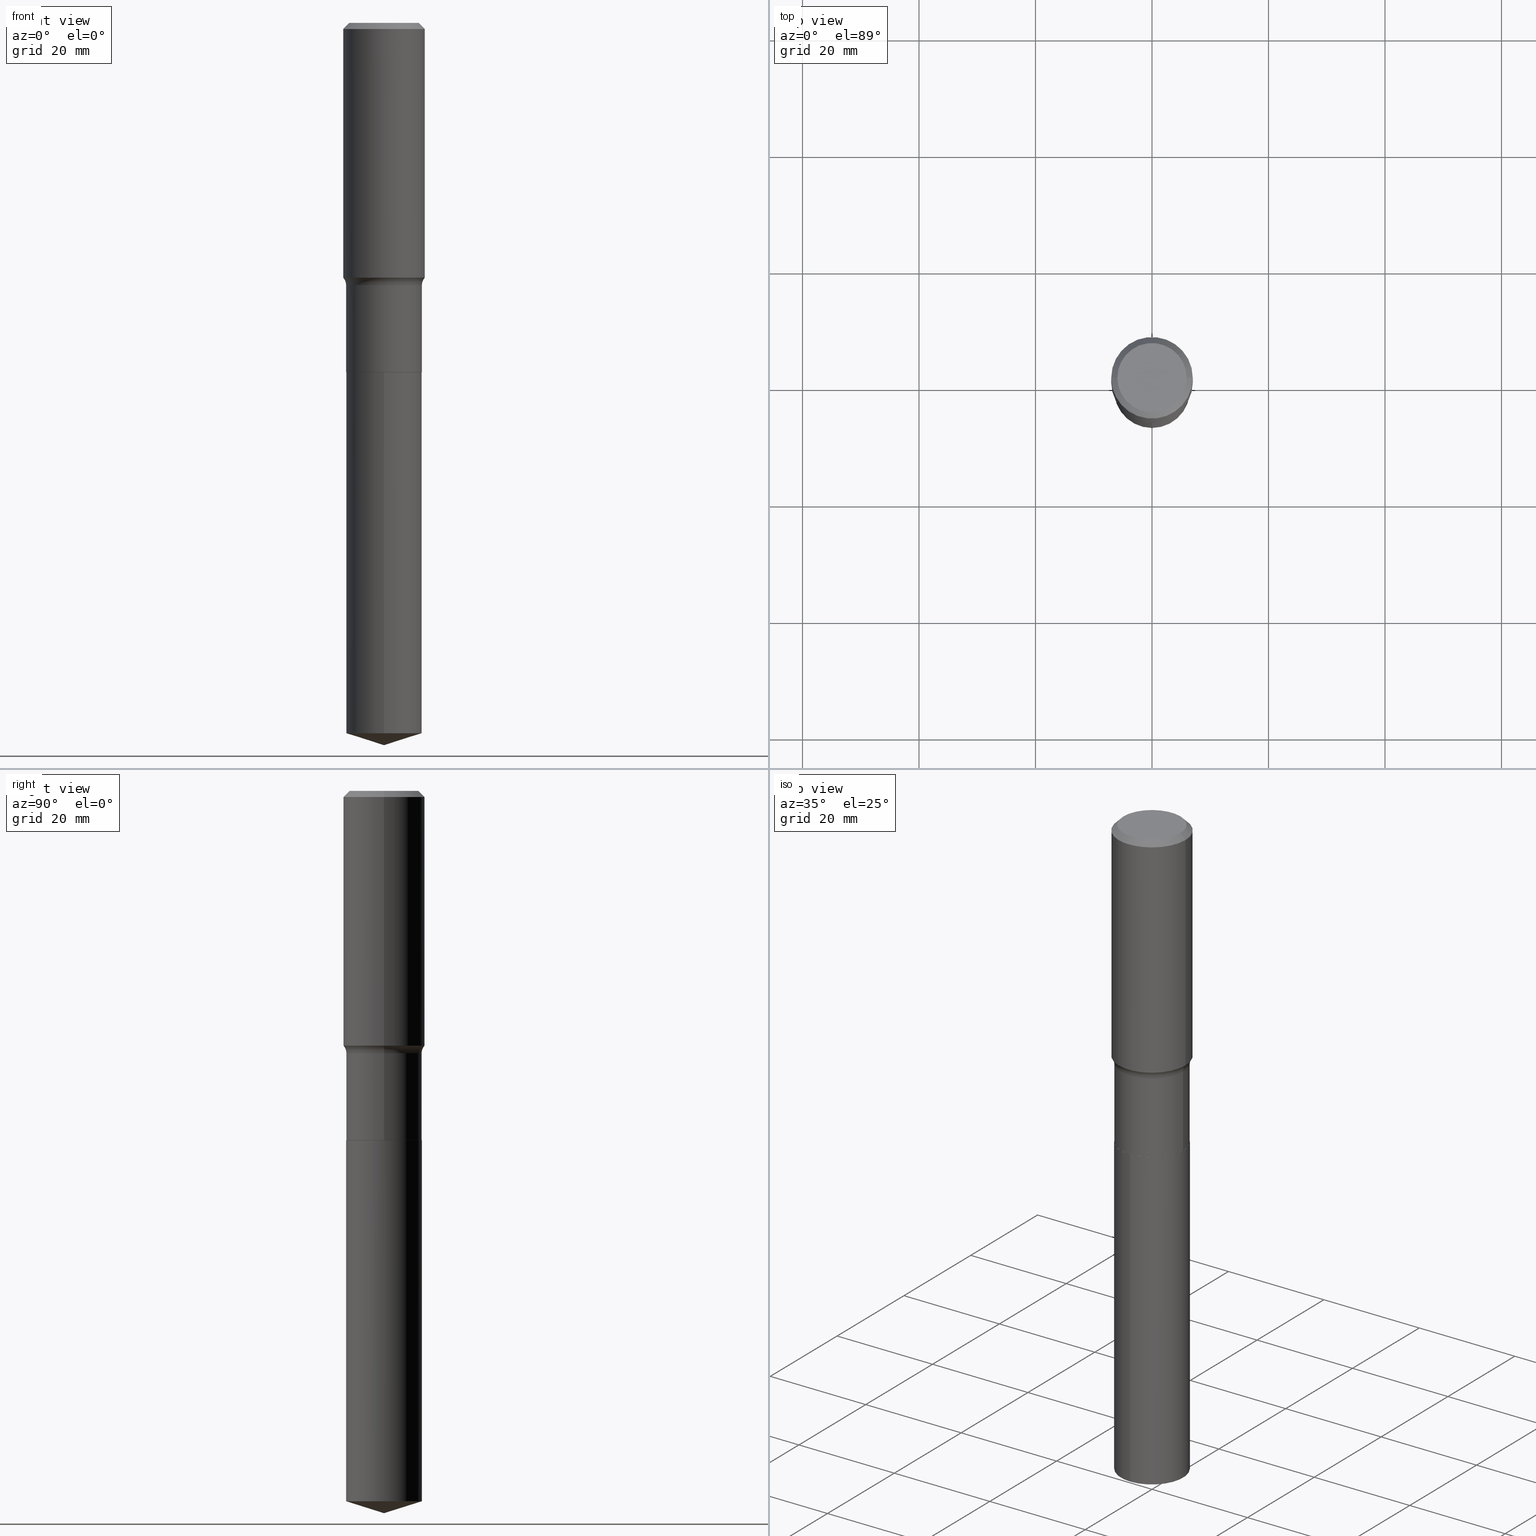
[diagram: canonical four-view strip — front | top / right | iso, engineering-drawing reading convention]
A machine part, canonical four-view strip (front | top / right | iso — engineering-drawing reading convention). The complete STEP part file that produces these views, byte-faithful:
ISO-10303-21;
HEADER;
FILE_DESCRIPTION (( 'STEP AP203' ),
    '1' );
FILE_NAME ('64198.STEP',
    '2024-04-19T15:34:56',
    ( '' ),
    ( '' ),
    'SwSTEP 2.0',
    'SolidWorks 2023',
    '' );
FILE_SCHEMA (( 'CONFIG_CONTROL_DESIGN' ));
ENDSEC;

DATA;
#1 = EDGE_CURVE ( 'NONE', #43, #151, #294, .T. ) ;
#2 = CYLINDRICAL_SURFACE ( 'NONE', #274, 0.2756000000000001227 ) ;
#3 = EDGE_LOOP ( 'NONE', ( #200, #75, #39, #373 ) ) ;
#4 = DIRECTION ( 'NONE',  ( -2.445245112378801486E-29, 3.491801681105678246E-15, 1.000000000000000000 ) ) ;
#5 = ORIENTED_EDGE ( 'NONE', *, *, #103, .F. ) ;
#6 = AXIS2_PLACEMENT_3D ( 'NONE', #44, #424, #305 ) ;
#7 = CARTESIAN_POINT ( 'NONE',  ( 0.2756000000000001782, -7.936074072254728996E-15, -1.721781952950733219 ) ) ;
#8 = EDGE_LOOP ( 'NONE', ( #454, #11, #300, #155 ) ) ;
#9 = PRODUCT_RELATED_PRODUCT_CATEGORY ( 'detail', '', ( #387 ) ) ;
#10 = DIRECTION ( 'NONE',  ( -2.445468806185136597E-29, 3.491481338843145583E-15, 1.000000000000000000 ) ) ;
#11 = ORIENTED_EDGE ( 'NONE', *, *, #156, .T. ) ;
#12 = EDGE_CURVE ( 'NONE', #263, #43, #380, .T. ) ;
#13 =( NAMED_UNIT ( * ) SI_UNIT ( $, .STERADIAN. ) SOLID_ANGLE_UNIT ( ) );
#14 = DIRECTION ( 'NONE',  ( 6.776566513254258926E-15, 0.9537169507482289310, 0.3007057995042665688 ) ) ;
#15 = CIRCLE ( 'NONE', #167, 0.2559000000000000163 ) ;
#16 = ORIENTED_EDGE ( 'NONE', *, *, #119, .F. ) ;
#17 = ADVANCED_FACE ( 'NONE', ( #467 ), #162, .T. ) ;
#18 = ORIENTED_EDGE ( 'NONE', *, *, #272, .T. ) ;
#19 = ADVANCED_FACE ( 'NONE', ( #386 ), #318, .F. ) ;
#20 = LINE ( 'NONE', #174, #362 ) ;
#21 = CYLINDRICAL_SURFACE ( 'NONE', #254, 0.2559000000000000163 ) ;
#22 = AXIS2_PLACEMENT_3D ( 'NONE', #264, #450, #262 ) ;
#23 = LOCAL_TIME ( 11, 34, 56.00000000000000000, #108 ) ;
#24 = CARTESIAN_POINT ( 'NONE',  ( -5.014852121625167883E-47, 7.159879756154482429E-33, 2.050671065172242981E-18 ) ) ;
#25 = CALENDAR_DATE ( 2024, 19, 4 ) ;
#26 = CARTESIAN_POINT ( 'NONE',  ( 0.000000000000000000, 0.000000000000000000, 0.000000000000000000 ) ) ;
#27 = PERSON_AND_ORGANIZATION ( #245, #414 ) ;
#28 = LINE ( 'NONE', #246, #471 ) ;
#29 = CALENDAR_DATE ( 2024, 19, 4 ) ;
#30 = AXIS2_PLACEMENT_3D ( 'NONE', #457, #4, #159 ) ;
#31 = DIRECTION ( 'NONE',  ( -2.445468806185136877E-29, 3.491481338843145188E-15, 1.000000000000000000 ) ) ;
#32 = APPROVAL_STATUS ( 'not_yet_approved' ) ;
#33 = DIRECTION ( 'NONE',  ( -2.445468806185136597E-29, 3.491481338843145583E-15, 1.000000000000000000 ) ) ;
#34 = EDGE_CURVE ( 'NONE', #43, #192, #468, .T. ) ;
#35 = PERSON_AND_ORGANIZATION_ROLE ( 'design_supplier' ) ;
#36 = DIRECTION ( 'NONE',  ( -2.445245112378801486E-29, 3.491801681105678246E-15, 1.000000000000000000 ) ) ;
#37 = DIRECTION ( 'NONE',  ( 2.445468806185136597E-29, -3.491481338843145583E-15, -1.000000000000000000 ) ) ;
#38 = AXIS2_PLACEMENT_3D ( 'NONE', #313, #244, #321 ) ;
#39 = ORIENTED_EDGE ( 'NONE', *, *, #354, .F. ) ;
#40 = DIRECTION ( 'NONE',  ( 1.000000000000000000, -6.982962677686265922E-15, 4.876176775795935793E-29 ) ) ;
#41 = EDGE_LOOP ( 'NONE', ( #232, #194, #116 ) ) ;
#42 = DIRECTION ( 'NONE',  ( -2.445468806185136597E-29, 3.491481338843145583E-15, 1.000000000000000000 ) ) ;
#43 = VERTEX_POINT ( 'NONE', #54 ) ;
#44 = CARTESIAN_POINT ( 'NONE',  ( 4.337283474649957727E-29, -6.192491302572202795E-15, -1.773599999999999843 ) ) ;
#45 = ORIENTED_EDGE ( 'NONE', *, *, #96, .F. ) ;
#46 = CC_DESIGN_APPROVAL ( #431, ( #322 ) ) ;
#47 = ORIENTED_EDGE ( 'NONE', *, *, #1, .T. ) ;
#48 = EDGE_CURVE ( 'NONE', #145, #118, #473, .T. ) ;
#49 = ORIENTED_EDGE ( 'NONE', *, *, #416, .F. ) ;
#50 = FACE_OUTER_BOUND ( 'NONE', #41, .T. ) ;
#51 = ORIENTED_EDGE ( 'NONE', *, *, #12, .T. ) ;
#52 = EDGE_CURVE ( 'NONE', #490, #339, #77, .T. ) ;
#53 = EDGE_CURVE ( 'NONE', #145, #73, #161, .T. ) ;
#54 = CARTESIAN_POINT ( 'NONE',  ( 1.818278860810213243E-15, 0.2558999999999831965, -4.801215039925869732 ) ) ;
#55 = DIRECTION ( 'NONE',  ( -2.445468806185136597E-29, 3.491481338843145583E-15, 1.000000000000000000 ) ) ;
#56 = APPROVAL ( #441, 'UNSPECIFIED' ) ;
#57 = DIRECTION ( 'NONE',  ( -0.7071067811865452413, 2.468850131082233000E-15, -0.7071067811865497932 ) ) ;
#58 = AXIS2_PLACEMENT_3D ( 'NONE', #248, #398, #439 ) ;
#59 = AXIS2_PLACEMENT_3D ( 'NONE', #256, #412, #111 ) ;
#60 = CARTESIAN_POINT ( 'NONE',  ( -0.2559000000000000163, 1.818278860810096492E-15, -1.258755489596230312E-29 ) ) ;
#61 = CARTESIAN_POINT ( 'NONE',  ( -0.2559000000000000719, -5.400882529448933178E-15, -2.361699999999999910 ) ) ;
#62 = PERSON_AND_ORGANIZATION ( #245, #414 ) ;
#63 = ADVANCED_BREP_SHAPE_REPRESENTATION ( '64198', ( #426, #261, #404 ), #345 ) ;
#64 = DIRECTION ( 'NONE',  ( -2.445468806185136597E-29, 3.491481338843145583E-15, 1.000000000000000000 ) ) ;
#65 = DATE_AND_TIME ( #247, #163 ) ;
#66 = CLOSED_SHELL ( 'NONE', ( #469, #360, #375, #440, #310 ) ) ;
#67 = CONICAL_SURFACE ( 'NONE', #137, 124.8659371009153460, 1.265363707695892348 ) ;
#68 = CC_DESIGN_PERSON_AND_ORGANIZATION_ASSIGNMENT ( #62, #173, ( #322 ) ) ;
#69 = LINE ( 'NONE', #331, #198 ) ;
#70 = ORIENTED_EDGE ( 'NONE', *, *, #211, .T. ) ;
#71 = PERSON_AND_ORGANIZATION ( #245, #414 ) ;
#72 = CARTESIAN_POINT ( 'NONE',  ( -1.002970424325033577E-46, 1.431975951230896486E-32, 4.101342130344485961E-18 ) ) ;
#73 = VERTEX_POINT ( 'NONE', #61 ) ;
#74 = CARTESIAN_POINT ( 'NONE',  ( 0.000000000000000000, 0.000000000000000000, 0.000000000000000000 ) ) ;
#75 = ORIENTED_EDGE ( 'NONE', *, *, #169, .T. ) ;
#76 = DIRECTION ( 'NONE',  ( 2.445245112378801206E-29, -3.491801681105678246E-15, -1.000000000000000000 ) ) ;
#77 = CIRCLE ( 'NONE', #221, 0.07799999999999995826 ) ;
#78 = ORIENTED_EDGE ( 'NONE', *, *, #103, .T. ) ;
#79 = DIRECTION ( 'NONE',  ( -2.445468806185136597E-29, 3.491481338843145583E-15, 1.000000000000000000 ) ) ;
#80 = ORIENTED_EDGE ( 'NONE', *, *, #52, .T. ) ;
#81 = DIRECTION ( 'NONE',  ( -2.445245112378801486E-29, 3.491801681105678246E-15, 1.000000000000000000 ) ) ;
#82 = EDGE_LOOP ( 'NONE', ( #492, #257, #16, #86 ) ) ;
#83 = CC_DESIGN_DATE_AND_TIME_ASSIGNMENT ( #65, #356, ( #322 ) ) ;
#84 = AXIS2_PLACEMENT_3D ( 'NONE', #219, #37, #442 ) ;
#85 = EDGE_LOOP ( 'NONE', ( #293, #51, #371 ) ) ;
#86 = ORIENTED_EDGE ( 'NONE', *, *, #131, .F. ) ;
#87 = CARTESIAN_POINT ( 'NONE',  ( 1.174067601936764775E-28, -1.676413403527045995E-14, -4.801215039925868844 ) ) ;
#88 = ORIENTED_EDGE ( 'NONE', *, *, #235, .F. ) ;
#89 = ADVANCED_FACE ( 'NONE', ( #284 ), #212, .F. ) ;
#90 = DIRECTION ( 'NONE',  ( -2.445468806185136597E-29, 3.491481338843145583E-15, 1.000000000000000000 ) ) ;
#91 = VECTOR ( 'NONE', #31, 39.37007874015748143 ) ;
#92 = DIRECTION ( 'NONE',  ( -1.000000000000000000, 7.105427357601001859E-15, 0.000000000000000000 ) ) ;
#93 = CARTESIAN_POINT ( 'NONE',  ( -0.2756000000000001227, 1.958255779754836984E-15, -1.355658510874252567E-29 ) ) ;
#94 = LINE ( 'NONE', #381, #214 ) ;
#95 = EDGE_CURVE ( 'NONE', #73, #145, #15, .T. ) ;
#96 = EDGE_CURVE ( 'NONE', #341, #376, #444, .T. ) ;
#97 = CARTESIAN_POINT ( 'NONE',  ( 0.2756000000000001227, -1.924504513970336137E-15, 1.343874319409360548E-29 ) ) ;
#98 = CONICAL_SURFACE ( 'NONE', #489, 0.2554000000000000159, 0.7853981633975507526 ) ;
#99 = CARTESIAN_POINT ( 'NONE',  ( 1.818278860810154079E-15, 0.2558999999999917452, -2.362200000000000522 ) ) ;
#100 = APPROVAL_ROLE ( '' ) ;
#101 = CARTESIAN_POINT ( 'NONE',  ( -1.786940149219797805E-15, -0.2559000000000167252, -4.801215039925867956 ) ) ;
#102 = APPROVAL_DATE_TIME ( #180, #56 ) ;
#103 = EDGE_CURVE ( 'NONE', #275, #376, #476, .T. ) ;
#104 = CARTESIAN_POINT ( 'NONE',  ( 1.193744211412206984E-28, -1.704662662698980824E-14, -4.881899999999999906 ) ) ;
#105 = CONICAL_SURFACE ( 'NONE', #84, 0.2756000000000000116, 0.7853981633974450594 ) ;
#106 = LOCAL_TIME ( 11, 34, 56.00000000000000000, #359 ) ;
#107 = CARTESIAN_POINT ( 'NONE',  ( -0.2342600000000000238, 1.707997756148671759E-15, 4.101342130332794026E-18 ) ) ;
#108 = COORDINATED_UNIVERSAL_TIME_OFFSET ( 5, 0, .BEHIND. ) ;
#109 = DIRECTION ( 'NONE',  ( 1.000000000000000000, -6.982962677686266711E-15, 0.000000000000000000 ) ) ;
#110 = ORIENTED_EDGE ( 'NONE', *, *, #447, .F. ) ;
#111 = DIRECTION ( 'NONE',  ( 1.000000000000000000, -6.982962677686267499E-15, 0.000000000000000000 ) ) ;
#112 = EDGE_LOOP ( 'NONE', ( #5, #88, #420, #308 ) ) ;
#113 = CIRCLE ( 'NONE', #413, 0.07799999999999995826 ) ;
#114 = DIRECTION ( 'NONE',  ( 1.000000000000000000, -6.982962677686266711E-15, 4.876176775795935232E-29 ) ) ;
#115 = AXIS2_PLACEMENT_3D ( 'NONE', #276, #197, #117 ) ;
#116 = ORIENTED_EDGE ( 'NONE', *, *, #1, .F. ) ;
#117 = DIRECTION ( 'NONE',  ( -1.000000000000000000, 6.982962677686267499E-15, 0.000000000000000000 ) ) ;
#118 = VERTEX_POINT ( 'NONE', #361 ) ;
#119 = EDGE_CURVE ( 'NONE', #376, #341, #403, .T. ) ;
#120 = FACE_OUTER_BOUND ( 'NONE', #85, .T. ) ;
#121 = ORIENTED_EDGE ( 'NONE', *, *, #354, .T. ) ;
#122 = DIRECTION ( 'NONE',  ( -6.982962677686266711E-15, -1.000000000000000000, 3.202635397027271900E-15 ) ) ;
#123 = ORIENTED_EDGE ( 'NONE', *, *, #131, .T. ) ;
#124 = AXIS2_PLACEMENT_3D ( 'NONE', #374, #10, #338 ) ;
#125 = ORIENTED_EDGE ( 'NONE', *, *, #188, .T. ) ;
#126 = ORIENTED_EDGE ( 'NONE', *, *, #291, .F. ) ;
#127 = EDGE_CURVE ( 'NONE', #192, #223, #238, .T. ) ;
#128 = DIRECTION ( 'NONE',  ( 1.000000000000000000, -6.982962677686269866E-15, 0.000000000000000000 ) ) ;
#129 = AXIS2_PLACEMENT_3D ( 'NONE', #418, #228, #353 ) ;
#130 = CARTESIAN_POINT ( 'NONE',  ( 0.2756000000000000116, -2.035091086733610886E-15, -0.04134000000000026542 ) ) ;
#131 = EDGE_CURVE ( 'NONE', #461, #376, #204, .T. ) ;
#132 = EDGE_CURVE ( 'NONE', #490, #341, #432, .T. ) ;
#133 = DIRECTION ( 'NONE',  ( -2.445245112378801767E-29, 3.491801681105678246E-15, 1.000000000000000000 ) ) ;
#134 = CARTESIAN_POINT ( 'NONE',  ( 5.775463679567436952E-29, -8.245831477945857334E-15, -2.361699999999999910 ) ) ;
#135 = AXIS2_PLACEMENT_3D ( 'NONE', #314, #434, #388 ) ;
#136 = COORDINATED_UNIVERSAL_TIME_OFFSET ( 5, 0, .BEHIND. ) ;
#137 = AXIS2_PLACEMENT_3D ( 'NONE', #230, #379, #433 ) ;
#138 = CIRCLE ( 'NONE', #124, 0.2554000000000000159 ) ;
#139 = DIRECTION ( 'NONE',  ( -2.445245112378801767E-29, 3.491801681105678246E-15, 1.000000000000000000 ) ) ;
#140 = EDGE_CURVE ( 'NONE', #297, #145, #28, .T. ) ;
#141 = EDGE_CURVE ( 'NONE', #151, #223, #20, .T. ) ;
#142 = DATE_TIME_ROLE ( 'classification_date' ) ;
#143 = FACE_OUTER_BOUND ( 'NONE', #277, .T. ) ;
#144 = CARTESIAN_POINT ( 'NONE',  ( 5.776686413970529753E-29, -8.247577218615278049E-15, -2.362199999999999633 ) ) ;
#145 = VERTEX_POINT ( 'NONE', #317 ) ;
#146 = CALENDAR_DATE ( 2024, 19, 4 ) ;
#147 = AXIS2_PLACEMENT_3D ( 'NONE', #237, #165, #306 ) ;
#148 = CC_DESIGN_SECURITY_CLASSIFICATION ( #378, ( #231 ) ) ;
#149 = DIRECTION ( 'NONE',  ( -6.982962677686266711E-15, -1.000000000000000000, 3.202635397027271900E-15 ) ) ;
#150 = CARTESIAN_POINT ( 'NONE',  ( 0.2554000000000000159, -1.003102588649635078E-14, -2.362199999999999633 ) ) ;
#151 = VERTEX_POINT ( 'NONE', #101 ) ;
#152 = DIRECTION ( 'NONE',  ( -2.445468806185136597E-29, 3.491481338843145583E-15, 1.000000000000000000 ) ) ;
#153 = EDGE_LOOP ( 'NONE', ( #302, #425 ) ) ;
#154 = CIRCLE ( 'NONE', #6, 0.2558999999999999608 ) ;
#155 = ORIENTED_EDGE ( 'NONE', *, *, #95, .F. ) ;
#156 = EDGE_CURVE ( 'NONE', #196, #297, #393, .T. ) ;
#157 = FACE_OUTER_BOUND ( 'NONE', #158, .T. ) ;
#158 = EDGE_LOOP ( 'NONE', ( #366, #126, #125, #121 ) ) ;
#159 = DIRECTION ( 'NONE',  ( -6.982962677686265922E-15, -1.000000000000000000, 3.500519750498696543E-15 ) ) ;
#160 = ORIENTED_EDGE ( 'NONE', *, *, #389, .F. ) ;
#161 = CIRCLE ( 'NONE', #58, 0.2559000000000000163 ) ;
#162 = CYLINDRICAL_SURFACE ( 'NONE', #435, 0.2559000000000000163 ) ;
#163 = LOCAL_TIME ( 11, 34, 56.00000000000000000, #475 ) ;
#164 = ORIENTED_EDGE ( 'NONE', *, *, #141, .F. ) ;
#165 = DIRECTION ( 'NONE',  ( -2.445245112378801486E-29, 3.491801681105678246E-15, 1.000000000000000000 ) ) ;
#166 = CARTESIAN_POINT ( 'NONE',  ( 1.010956804476942048E-30, -1.443378385477765563E-16, -0.04134000000000026542 ) ) ;
#167 = AXIS2_PLACEMENT_3D ( 'NONE', #134, #171, #128 ) ;
#168 = APPROVAL_PERSON_ORGANIZATION ( #216, #56, #483 ) ;
#169 = EDGE_CURVE ( 'NONE', #73, #339, #480, .T. ) ;
#170 = DIRECTION ( 'NONE',  ( -2.445245112378801486E-29, 3.491801681105678246E-15, 1.000000000000000000 ) ) ;
#171 = DIRECTION ( 'NONE',  ( -2.445468806185136597E-29, 3.491481338843145583E-15, 1.000000000000000000 ) ) ;
#172 = DIRECTION ( 'NONE',  ( -2.445468806185136597E-29, 3.491481338843145583E-15, 1.000000000000000000 ) ) ;
#173 = PERSON_AND_ORGANIZATION_ROLE ( 'creator' ) ;
#174 = CARTESIAN_POINT ( 'NONE',  ( -1.786940149219857758E-15, -0.2559000000000082875, -2.362199999999998745 ) ) ;
#175 = AXIS2_PLACEMENT_3D ( 'NONE', #390, #64, #287 ) ;
#176 = PERSON_AND_ORGANIZATION ( #245, #414 ) ;
#177 = CIRCLE ( 'NONE', #59, 0.2756000000000002337 ) ;
#178 = CYLINDRICAL_SURFACE ( 'NONE', #271, 0.2756000000000001227 ) ;
#179 = DIRECTION ( 'NONE',  ( 1.000000000000000000, -6.982962677686267499E-15, 4.876157962347795834E-29 ) ) ;
#180 = DATE_AND_TIME ( #408, #23 ) ;
#181 = CARTESIAN_POINT ( 'NONE',  ( 0.2342600000000000238, -1.821115673845785155E-15, 4.101342130356573868E-18 ) ) ;
#182 = ORIENTED_EDGE ( 'NONE', *, *, #224, .F. ) ;
#183 = ADVANCED_FACE ( 'NONE', ( #355 ), #178, .T. ) ;
#184 = DIRECTION ( 'NONE',  ( -2.438088387897960049E-29, 3.491481338843145188E-15, 1.000000000000000000 ) ) ;
#185 = PLANE ( 'NONE',  #428 ) ;
#186 = ORIENTED_EDGE ( 'NONE', *, *, #156, .F. ) ;
#187 = FACE_OUTER_BOUND ( 'NONE', #112, .T. ) ;
#188 = EDGE_CURVE ( 'NONE', #461, #118, #113, .T. ) ;
#189 = VECTOR ( 'NONE', #474, 39.37007874015748143 ) ;
#190 = CARTESIAN_POINT ( 'NONE',  ( 4.337283474649957727E-29, -6.192491302572202795E-15, -1.773599999999999843 ) ) ;
#191 = AXIS2_PLACEMENT_3D ( 'NONE', #458, #269, #419 ) ;
#192 = VERTEX_POINT ( 'NONE', #400 ) ;
#193 = DESIGN_CONTEXT ( 'detailed design', #326, 'design' ) ;
#194 = ORIENTED_EDGE ( 'NONE', *, *, #340, .T. ) ;
#195 = FACE_OUTER_BOUND ( 'NONE', #335, .T. ) ;
#196 = VERTEX_POINT ( 'NONE', #372 ) ;
#197 = DIRECTION ( 'NONE',  ( 2.445468806185136597E-29, -3.491481338843145583E-15, -1.000000000000000000 ) ) ;
#198 = VECTOR ( 'NONE', #367, 39.37007874015748143 ) ;
#199 = APPROVAL_PERSON_ORGANIZATION ( #27, #487, #210 ) ;
#200 = ORIENTED_EDGE ( 'NONE', *, *, #53, .T. ) ;
#201 = ORIENTED_EDGE ( 'NONE', *, *, #447, .T. ) ;
#202 = CARTESIAN_POINT ( 'NONE',  ( 0.2559000000000000163, -1.786940149219915740E-15, 1.247813636926179898E-29 ) ) ;
#203 = CC_DESIGN_PERSON_AND_ORGANIZATION_ASSIGNMENT ( #405, #249, ( #387 ) ) ;
#204 = LINE ( 'NONE', #97, #189 ) ;
#205 = VECTOR ( 'NONE', #133, 39.37007874015748143 ) ;
#206 = SHAPE_DEFINITION_REPRESENTATION ( #330, #63 ) ;
#207 = DIRECTION ( 'NONE',  ( -2.445468806185136877E-29, 3.491481338843145188E-15, 1.000000000000000000 ) ) ;
#208 = APPLICATION_PROTOCOL_DEFINITION ( 'international standard', 'config_control_design', 1994, #326 ) ;
#209 = DIRECTION ( 'NONE',  ( 1.000000000000000000, -6.982962677686267499E-15, 0.000000000000000000 ) ) ;
#210 = APPROVAL_ROLE ( '' ) ;
#211 = EDGE_CURVE ( 'NONE', #196, #73, #69, .T. ) ;
#212 = PLANE ( 'NONE',  #282 ) ;
#213 = CLOSED_SHELL ( 'NONE', ( #279, #410, #290, #19, #17, #358, #456, #183, #241, #89, #255, #347 ) ) ;
#214 = VECTOR ( 'NONE', #57, 39.37007874015748143 ) ;
#215 = PLANE ( 'NONE',  #239 ) ;
#216 = PERSON_AND_ORGANIZATION ( #245, #414 ) ;
#217 = FACE_OUTER_BOUND ( 'NONE', #407, .T. ) ;
#218 = ORIENTED_EDGE ( 'NONE', *, *, #127, .T. ) ;
#219 = CARTESIAN_POINT ( 'NONE',  ( 1.010956804476942048E-30, -1.443378385477765563E-16, -0.04134000000000026542 ) ) ;
#220 = EDGE_LOOP ( 'NONE', ( #384, #47, #411, #278 ) ) ;
#221 = AXIS2_PLACEMENT_3D ( 'NONE', #430, #349, #92 ) ;
#222 = CARTESIAN_POINT ( 'NONE',  ( -0.2558999999999999608, -5.400882529448933178E-15, -1.773599999999999843 ) ) ;
#223 = VERTEX_POINT ( 'NONE', #289 ) ;
#224 = EDGE_CURVE ( 'NONE', #275, #346, #229, .T. ) ;
#225 = DIRECTION ( 'NONE',  ( -2.445468806185136597E-29, 3.491481338843145583E-15, 1.000000000000000000 ) ) ;
#226 = ORIENTED_EDGE ( 'NONE', *, *, #265, .F. ) ;
#227 = DIRECTION ( 'NONE',  ( -6.982962677686266711E-15, -1.000000000000000000, 4.270180529369696392E-15 ) ) ;
#228 = DIRECTION ( 'NONE',  ( -2.445468806185136597E-29, 3.491481338843145583E-15, 1.000000000000000000 ) ) ;
#229 = CIRCLE ( 'NONE', #253, 0.2342600000000000238 ) ;
#230 = CARTESIAN_POINT ( 'NONE',  ( -8.433152208970724382E-28, 1.204266372156475520E-13, 34.48817874015747975 ) ) ;
#231 = PRODUCT_DEFINITION_FORMATION_WITH_SPECIFIED_SOURCE ( 'ANY', '', #387, .NOT_KNOWN. ) ;
#232 = ORIENTED_EDGE ( 'NONE', *, *, #12, .F. ) ;
#233 = APPLICATION_PROTOCOL_DEFINITION ( 'international standard', 'config_control_design', 1994, #396 ) ;
#234 = ORIENTED_EDGE ( 'NONE', *, *, #119, .T. ) ;
#235 = EDGE_CURVE ( 'NONE', #346, #275, #478, .T. ) ;
#236 = DIRECTION ( 'NONE',  ( 1.000000000000000000, -6.982962677686266711E-15, 4.883557194083113462E-29 ) ) ;
#237 = CARTESIAN_POINT ( 'NONE',  ( 1.174067601936764775E-28, -1.676413403527045995E-14, -4.801215039925868844 ) ) ;
#238 = CIRCLE ( 'NONE', #135, 0.2559000000000000163 ) ;
#239 = AXIS2_PLACEMENT_3D ( 'NONE', #323, #76, #448 ) ;
#240 = EDGE_LOOP ( 'NONE', ( #260, #459, #123, #45 ) ) ;
#241 = ADVANCED_FACE ( 'NONE', ( #187 ), #105, .T. ) ;
#242 = DIRECTION ( 'NONE',  ( 2.438088387897960049E-29, -3.491481338843145188E-15, -1.000000000000000000 ) ) ;
#243 = UNCERTAINTY_MEASURE_WITH_UNIT (LENGTH_MEASURE( 1.000000000000000082E-05 ), #465, 'distance_accuracy_value', 'NONE');
#244 = DIRECTION ( 'NONE',  ( -2.445468806185136597E-29, 3.491481338843145583E-15, 1.000000000000000000 ) ) ;
#245 = PERSON ( 'UNSPECIFIED', 'UNSPECIFIED', 'UNSPECIFIED', ('UNSPECIFIED'), ('UNSPECIFIED'), ('UNSPECIFIED') ) ;
#246 = CARTESIAN_POINT ( 'NONE',  ( 0.2554000000000000159, -1.003102588649635078E-14, -2.362199999999999633 ) ) ;
#247 = CALENDAR_DATE ( 2024, 19, 4 ) ;
#248 = CARTESIAN_POINT ( 'NONE',  ( 5.775463679567436952E-29, -8.245831477945857334E-15, -2.361699999999999910 ) ) ;
#249 = PERSON_AND_ORGANIZATION_ROLE ( 'design_owner' ) ;
#250 = DIRECTION ( 'NONE',  ( 1.000000000000000000, -6.982962677686261977E-15, 0.000000000000000000 ) ) ;
#251 = DATE_AND_TIME ( #146, #436 ) ;
#252 = FACE_OUTER_BOUND ( 'NONE', #82, .T. ) ;
#253 = AXIS2_PLACEMENT_3D ( 'NONE', #72, #79, #179 ) ;
#254 = AXIS2_PLACEMENT_3D ( 'NONE', #342, #81, #122 ) ;
#255 = ADVANCED_FACE ( 'NONE', ( #217 ), #185, .F. ) ;
#256 = CARTESIAN_POINT ( 'NONE',  ( 4.210564056993542435E-29, -6.011569558284392464E-15, -1.721781952950733219 ) ) ;
#257 = ORIENTED_EDGE ( 'NONE', *, *, #132, .T. ) ;
#258 = SECURITY_CLASSIFICATION_LEVEL ( 'unclassified' ) ;
#259 = CARTESIAN_POINT ( 'NONE',  ( 4.210564056993542435E-29, -6.011569558284392464E-15, -1.721781952950733219 ) ) ;
#260 = ORIENTED_EDGE ( 'NONE', *, *, #132, .F. ) ;
#261 = MANIFOLD_SOLID_BREP ( 'Body-Move/Copy2[2]', #213 ) ;
#262 = DIRECTION ( 'NONE',  ( 1.000000000000000000, -6.982962677686267499E-15, 4.876157962347795834E-29 ) ) ;
#263 = VERTEX_POINT ( 'NONE', #104 ) ;
#264 = CARTESIAN_POINT ( 'NONE',  ( -1.002970424325033577E-46, 1.431975951230896486E-32, 4.101342130344485961E-18 ) ) ;
#265 = EDGE_CURVE ( 'NONE', #490, #461, #351, .T. ) ;
#266 = FACE_OUTER_BOUND ( 'NONE', #220, .T. ) ;
#267 = ORIENTED_EDGE ( 'NONE', *, *, #95, .T. ) ;
#268 = CC_DESIGN_DATE_AND_TIME_ASSIGNMENT ( #251, #142, ( #378 ) ) ;
#269 = DIRECTION ( 'NONE',  ( -2.445245112378801486E-29, 3.491801681105678246E-15, 1.000000000000000000 ) ) ;
#270 = ORIENTED_EDGE ( 'NONE', *, *, #464, .T. ) ;
#271 = AXIS2_PLACEMENT_3D ( 'NONE', #26, #172, #315 ) ;
#272 = EDGE_CURVE ( 'NONE', #223, #192, #328, .T. ) ;
#273 = CARTESIAN_POINT ( 'NONE',  ( -0.2756000000000001782, -4.053313778529554297E-15, -1.721781952950733219 ) ) ;
#274 = AXIS2_PLACEMENT_3D ( 'NONE', #296, #33, #415 ) ;
#275 = VERTEX_POINT ( 'NONE', #181 ) ;
#276 = CARTESIAN_POINT ( 'NONE',  ( 1.010956804476942048E-30, -1.443378385477765563E-16, -0.04134000000000026542 ) ) ;
#277 = EDGE_LOOP ( 'NONE', ( #18, #218 ) ) ;
#278 = ORIENTED_EDGE ( 'NONE', *, *, #127, .F. ) ;
#279 = ADVANCED_FACE ( 'NONE', ( #325 ), #98, .T. ) ;
#280 = AXIS2_PLACEMENT_3D ( 'NONE', #190, #417, #236 ) ;
#281 = DIRECTION ( 'NONE',  ( -2.445468806185136877E-29, 3.491481338843145188E-15, 1.000000000000000000 ) ) ;
#282 = AXIS2_PLACEMENT_3D ( 'NONE', #24, #242, #357 ) ;
#283 = DIRECTION ( 'NONE',  ( 0.7071067811865452413, -7.319954787623248157E-15, -0.7071067811865497932 ) ) ;
#284 = FACE_OUTER_BOUND ( 'NONE', #153, .T. ) ;
#285 = DATE_AND_TIME ( #29, #106 ) ;
#286 = CARTESIAN_POINT ( 'NONE',  ( 0.3338999999999999746, -8.524102540651647369E-15, -1.773599999999999843 ) ) ;
#287 = DIRECTION ( 'NONE',  ( 1.000000000000000000, -6.982962677686267499E-15, 0.000000000000000000 ) ) ;
#288 = PERSON_AND_ORGANIZATION ( #245, #414 ) ;
#289 = CARTESIAN_POINT ( 'NONE',  ( -1.786940149219857758E-15, -0.2559000000000082875, -2.362199999999998745 ) ) ;
#290 = ADVANCED_FACE ( 'NONE', ( #252 ), #2, .T. ) ;
#291 = EDGE_CURVE ( 'NONE', #461, #490, #177, .T. ) ;
#292 = CARTESIAN_POINT ( 'NONE',  ( 5.776686413970529753E-29, -8.247577218615278049E-15, -2.362199999999999633 ) ) ;
#293 = ORIENTED_EDGE ( 'NONE', *, *, #340, .F. ) ;
#294 = CIRCLE ( 'NONE', #147, 0.2559000000000000163 ) ;
#295 = DIRECTION ( 'NONE',  ( 0.000000000000000000, 0.000000000000000000, 1.000000000000000000 ) ) ;
#296 = CARTESIAN_POINT ( 'NONE',  ( 0.000000000000000000, 0.000000000000000000, 0.000000000000000000 ) ) ;
#297 = VERTEX_POINT ( 'NONE', #150 ) ;
#298 = DIRECTION ( 'NONE',  ( 1.000000000000000000, -6.982962677686267499E-15, 0.000000000000000000 ) ) ;
#299 = CARTESIAN_POINT ( 'NONE',  ( 5.776686413970529753E-29, -8.247577218615278049E-15, -2.362199999999999633 ) ) ;
#300 = ORIENTED_EDGE ( 'NONE', *, *, #140, .T. ) ;
#301 = VECTOR ( 'NONE', #370, 39.37007874015748143 ) ;
#302 = ORIENTED_EDGE ( 'NONE', *, *, #235, .T. ) ;
#303 = FACE_OUTER_BOUND ( 'NONE', #324, .T. ) ;
#304 = EDGE_LOOP ( 'NONE', ( #327, #267, #466, #110 ) ) ;
#305 = DIRECTION ( 'NONE',  ( 1.000000000000000000, -6.982962677686266711E-15, 0.000000000000000000 ) ) ;
#306 = DIRECTION ( 'NONE',  ( -6.982962677686266711E-15, -1.000000000000000000, 4.270180529369696392E-15 ) ) ;
#307 =( LENGTH_UNIT ( ) NAMED_UNIT ( * ) SI_UNIT ( $, .METRE. ) );
#308 = ORIENTED_EDGE ( 'NONE', *, *, #96, .T. ) ;
#309 = ORIENTED_EDGE ( 'NONE', *, *, #34, .T. ) ;
#310 = ADVANCED_FACE ( 'NONE', ( #143 ), #215, .F. ) ;
#311 = ORIENTED_EDGE ( 'NONE', *, *, #272, .F. ) ;
#312 = VECTOR ( 'NONE', #283, 39.37007874015748143 ) ;
#313 = CARTESIAN_POINT ( 'NONE',  ( 5.776686413970529753E-29, -8.247577218615278049E-15, -2.362199999999999633 ) ) ;
#314 = CARTESIAN_POINT ( 'NONE',  ( 5.776686413970529753E-29, -8.247577218615278049E-15, -2.362199999999999633 ) ) ;
#315 = DIRECTION ( 'NONE',  ( 1.000000000000000000, -6.982962677686267499E-15, 4.876176775795935793E-29 ) ) ;
#316 = MECHANICAL_CONTEXT ( 'NONE', #396, 'mechanical' ) ;
#317 = CARTESIAN_POINT ( 'NONE',  ( 0.2559000000000000163, -1.003277162716577307E-14, -2.361699999999999910 ) ) ;
#318 = TOROIDAL_SURFACE ( 'NONE', #129, 0.3338999999999999746, 0.07799999999999995826 ) ;
#319 = AXIS2_PLACEMENT_3D ( 'NONE', #299, #152, #298 ) ;
#320 = PERSON_AND_ORGANIZATION_ROLE ( 'classification_officer' ) ;
#321 = DIRECTION ( 'NONE',  ( 1.000000000000000000, -6.982962677686267499E-15, 0.000000000000000000 ) ) ;
#322 = PRODUCT_DEFINITION ( 'UNKNOWN', '', #231, #193 ) ;
#323 = CARTESIAN_POINT ( 'NONE',  ( 5.776686413970529753E-29, -8.247577218615278049E-15, -2.362199999999999633 ) ) ;
#324 = EDGE_LOOP ( 'NONE', ( #270, #309, #311, #164 ) ) ;
#325 = FACE_OUTER_BOUND ( 'NONE', #382, .T. ) ;
#326 = APPLICATION_CONTEXT ( 'configuration controlled 3d designs of mechanical parts and assemblies' ) ;
#327 = ORIENTED_EDGE ( 'NONE', *, *, #169, .F. ) ;
#328 = CIRCLE ( 'NONE', #462, 0.2559000000000000163 ) ;
#329 = CIRCLE ( 'NONE', #429, 0.2558999999999999608 ) ;
#330 = PRODUCT_DEFINITION_SHAPE ( 'NONE', 'NONE',  #322 ) ;
#331 = CARTESIAN_POINT ( 'NONE',  ( -0.2554000000000000159, -6.432851071483981667E-15, -2.362199999999999633 ) ) ;
#332 = ORIENTED_EDGE ( 'NONE', *, *, #188, .F. ) ;
#333 = LINE ( 'NONE', #484, #301 ) ;
#334 = CARTESIAN_POINT ( 'NONE',  ( 0.000000000000000000, 0.000000000000000000, 0.000000000000000000 ) ) ;
#335 = EDGE_LOOP ( 'NONE', ( #182, #78, #234, #49 ) ) ;
#336 = VECTOR ( 'NONE', #14, 39.37007874015748854 ) ;
#337 = AXIS2_PLACEMENT_3D ( 'NONE', #87, #170, #227 ) ;
#338 = DIRECTION ( 'NONE',  ( 1.000000000000000000, -6.982962677686267499E-15, 0.000000000000000000 ) ) ;
#339 = VERTEX_POINT ( 'NONE', #222 ) ;
#340 = EDGE_CURVE ( 'NONE', #263, #151, #333, .T. ) ;
#341 = VERTEX_POINT ( 'NONE', #443 ) ;
#342 = CARTESIAN_POINT ( 'NONE',  ( 5.776686413970529753E-29, -8.247577218615278049E-15, -2.362199999999999633 ) ) ;
#343 = CARTESIAN_POINT ( 'NONE',  ( 1.193850820019603953E-28, -1.704511320200470068E-14, -4.881899999999999906 ) ) ;
#344 = VECTOR ( 'NONE', #207, 39.37007874015748143 ) ;
#345 =( GEOMETRIC_REPRESENTATION_CONTEXT ( 3 ) GLOBAL_UNCERTAINTY_ASSIGNED_CONTEXT ( ( #243 ) ) GLOBAL_UNIT_ASSIGNED_CONTEXT ( ( #465, #422, #13 ) ) REPRESENTATION_CONTEXT ( 'NONE', 'WORKASPACE' ) );
#346 = VERTEX_POINT ( 'NONE', #107 ) ;
#347 = ADVANCED_FACE ( 'NONE', ( #402 ), #385, .T. ) ;
#348 = DIRECTION ( 'NONE',  ( 1.000000000000000000, -6.982962677686266711E-15, 4.876176775795935232E-29 ) ) ;
#349 = DIRECTION ( 'NONE',  ( 7.105427357601001859E-15, 1.000000000000000000, -3.491481338843145583E-15 ) ) ;
#350 = CARTESIAN_POINT ( 'NONE',  ( 0.2756000000000000116, -2.068842352518111732E-15, -0.04134000000000026542 ) ) ;
#351 = CIRCLE ( 'NONE', #421, 0.2756000000000002337 ) ;
#352 = CC_DESIGN_APPROVAL ( #56, ( #378 ) ) ;
#353 = DIRECTION ( 'NONE',  ( 1.000000000000000000, -6.982962677686266711E-15, 4.883557194083113462E-29 ) ) ;
#354 = EDGE_CURVE ( 'NONE', #118, #339, #329, .T. ) ;
#355 = FACE_OUTER_BOUND ( 'NONE', #240, .T. ) ;
#356 = DATE_TIME_ROLE ( 'creation_date' ) ;
#357 = DIRECTION ( 'NONE',  ( -1.000000000000000000, 6.982962677686265922E-15, -4.876176775795935793E-29 ) ) ;
#358 = ADVANCED_FACE ( 'NONE', ( #409 ), #452, .T. ) ;
#359 = COORDINATED_UNIVERSAL_TIME_OFFSET ( 5, 0, .BEHIND. ) ;
#360 = ADVANCED_FACE ( 'NONE', ( #120 ), #363, .T. ) ;
#361 = CARTESIAN_POINT ( 'NONE',  ( 0.2558999999999999608, -7.979431451792117746E-15, -1.773599999999999843 ) ) ;
#362 = VECTOR ( 'NONE', #139, 39.37007874015748143 ) ;
#363 = CONICAL_SURFACE ( 'NONE', #30, 124.8659371009153460, 1.265363707695892348 ) ;
#364 = DIRECTION ( 'NONE',  ( -2.445468806185136597E-29, 3.491481338843145583E-15, 1.000000000000000000 ) ) ;
#365 = DIRECTION ( 'NONE',  ( 1.000000000000000000, -6.982962677686267499E-15, 0.000000000000000000 ) ) ;
#366 = ORIENTED_EDGE ( 'NONE', *, *, #52, .F. ) ;
#367 = DIRECTION ( 'NONE',  ( -0.7071067811866199593, 7.493145998870616062E-15, 0.7071067811864750752 ) ) ;
#368 = DIMENSIONAL_EXPONENTS ( 1.000000000000000000, 0.000000000000000000, 0.000000000000000000, 0.000000000000000000, 0.000000000000000000, 0.000000000000000000, 0.000000000000000000 ) ;
#369 = APPROVAL_PERSON_ORGANIZATION ( #288, #431, #100 ) ;
#370 = DIRECTION ( 'NONE',  ( -6.659769872151633666E-15, -0.9537169507482269326, 0.3007057995042732301 ) ) ;
#371 = ORIENTED_EDGE ( 'NONE', *, *, #464, .F. ) ;
#372 = CARTESIAN_POINT ( 'NONE',  ( -0.2554000000000000159, -6.430201844309871254E-15, -2.362199999999999633 ) ) ;
#373 = ORIENTED_EDGE ( 'NONE', *, *, #48, .F. ) ;
#374 = CARTESIAN_POINT ( 'NONE',  ( 5.776686413970529753E-29, -8.247577218615278049E-15, -2.362199999999999633 ) ) ;
#375 = ADVANCED_FACE ( 'NONE', ( #50 ), #67, .T. ) ;
#376 = VERTEX_POINT ( 'NONE', #350 ) ;
#377 = VECTOR ( 'NONE', #281, 39.37007874015748143 ) ;
#378 = SECURITY_CLASSIFICATION ( '', '', #258 ) ;
#379 = DIRECTION ( 'NONE',  ( -2.445245112378801486E-29, 3.491801681105678246E-15, 1.000000000000000000 ) ) ;
#380 = LINE ( 'NONE', #343, #336 ) ;
#381 = CARTESIAN_POINT ( 'NONE',  ( -0.2756000000000000116, 1.780166675422558965E-15, -0.04134000000000026542 ) ) ;
#382 = EDGE_LOOP ( 'NONE', ( #423, #70, #451, #485 ) ) ;
#383 = CC_DESIGN_PERSON_AND_ORGANIZATION_ASSIGNMENT ( #71, #320, ( #378 ) ) ;
#384 = ORIENTED_EDGE ( 'NONE', *, *, #34, .F. ) ;
#385 = CONICAL_SURFACE ( 'NONE', #319, 0.2554000000000000159, 0.7853981633975507526 ) ;
#386 = FACE_OUTER_BOUND ( 'NONE', #449, .T. ) ;
#387 = PRODUCT ( '64198', '64198', '', ( #316 ) ) ;
#388 = DIRECTION ( 'NONE',  ( -6.982962677686266711E-15, -1.000000000000000000, 3.202635397027271900E-15 ) ) ;
#389 = EDGE_CURVE ( 'NONE', #297, #196, #138, .T. ) ;
#390 = CARTESIAN_POINT ( 'NONE',  ( 1.010956804476942048E-30, -1.443378385477765563E-16, -0.04134000000000026542 ) ) ;
#391 = CC_DESIGN_PERSON_AND_ORGANIZATION_ASSIGNMENT ( #176, #35, ( #231 ) ) ;
#392 = LENGTH_MEASURE_WITH_UNIT ( LENGTH_MEASURE( 0.02539999999999999897 ), #307 );
#393 = CIRCLE ( 'NONE', #38, 0.2554000000000000159 ) ;
#394 = CONICAL_SURFACE ( 'NONE', #115, 0.2756000000000000116, 0.7853981633974450594 ) ;
#395 = DIRECTION ( 'NONE',  ( 0.7071067811866199593, -2.468850131083015945E-15, 0.7071067811864750752 ) ) ;
#396 = APPLICATION_CONTEXT ( 'configuration controlled 3d designs of mechanical parts and assemblies' ) ;
#397 = DIRECTION ( 'NONE',  ( 1.000000000000000000, 0.000000000000000000, 0.000000000000000000 ) ) ;
#398 = DIRECTION ( 'NONE',  ( -2.445468806185136597E-29, 3.491481338843145583E-15, 1.000000000000000000 ) ) ;
#399 = COORDINATED_UNIVERSAL_TIME_OFFSET ( 5, 0, .BEHIND. ) ;
#400 = CARTESIAN_POINT ( 'NONE',  ( 1.818278860810214426E-15, 0.2558999999999917452, -2.362200000000000522 ) ) ;
#401 = PERSON_AND_ORGANIZATION ( #245, #414 ) ;
#402 = FACE_OUTER_BOUND ( 'NONE', #8, .T. ) ;
#403 = CIRCLE ( 'NONE', #453, 0.2756000000000000116 ) ;
#404 = AXIS2_PLACEMENT_3D ( 'NONE', #334, #295, #397 ) ;
#405 = PERSON_AND_ORGANIZATION ( #245, #414 ) ;
#406 = CARTESIAN_POINT ( 'NONE',  ( 4.337283474649957727E-29, -6.192491302572202795E-15, -1.773599999999999843 ) ) ;
#407 = EDGE_LOOP ( 'NONE', ( #160, #186 ) ) ;
#408 = CALENDAR_DATE ( 2024, 19, 4 ) ;
#409 = FACE_OUTER_BOUND ( 'NONE', #304, .T. ) ;
#410 = ADVANCED_FACE ( 'NONE', ( #195 ), #394, .T. ) ;
#411 = ORIENTED_EDGE ( 'NONE', *, *, #141, .T. ) ;
#412 = DIRECTION ( 'NONE',  ( -2.445468806185136597E-29, 3.491481338843145583E-15, 1.000000000000000000 ) ) ;
#413 = AXIS2_PLACEMENT_3D ( 'NONE', #286, #437, #250 ) ;
#414 = ORGANIZATION ( 'UNSPECIFIED', 'UNSPECIFIED', '' ) ;
#415 = DIRECTION ( 'NONE',  ( 1.000000000000000000, -6.982962677686267499E-15, 4.876176775795935793E-29 ) ) ;
#416 = EDGE_CURVE ( 'NONE', #346, #341, #94, .T. ) ;
#417 = DIRECTION ( 'NONE',  ( -2.445468806185136597E-29, 3.491481338843145583E-15, 1.000000000000000000 ) ) ;
#418 = CARTESIAN_POINT ( 'NONE',  ( 4.337283474649957727E-29, -6.192491302572202795E-15, -1.773599999999999843 ) ) ;
#419 = DIRECTION ( 'NONE',  ( -6.982962677686266711E-15, -1.000000000000000000, 3.202635397027271900E-15 ) ) ;
#420 = ORIENTED_EDGE ( 'NONE', *, *, #416, .T. ) ;
#421 = AXIS2_PLACEMENT_3D ( 'NONE', #259, #225, #365 ) ;
#422 =( NAMED_UNIT ( * ) PLANE_ANGLE_UNIT ( ) SI_UNIT ( $, .RADIAN. ) );
#423 = ORIENTED_EDGE ( 'NONE', *, *, #389, .T. ) ;
#424 = DIRECTION ( 'NONE',  ( -2.445468806185136597E-29, 3.491481338843145583E-15, 1.000000000000000000 ) ) ;
#425 = ORIENTED_EDGE ( 'NONE', *, *, #224, .T. ) ;
#426 = MANIFOLD_SOLID_BREP ( 'Body-Move/Copy2[1]', #66 ) ;
#427 = CARTESIAN_POINT ( 'NONE',  ( 0.000000000000000000, 0.000000000000000000, 0.000000000000000000 ) ) ;
#428 = AXIS2_PLACEMENT_3D ( 'NONE', #144, #184, #40 ) ;
#429 = AXIS2_PLACEMENT_3D ( 'NONE', #406, #364, #109 ) ;
#430 = CARTESIAN_POINT ( 'NONE',  ( -0.3338999999999999746, -3.819989107869228455E-15, -1.773599999999999843 ) ) ;
#431 = APPROVAL ( #32, 'UNSPECIFIED' ) ;
#432 = LINE ( 'NONE', #93, #91 ) ;
#433 = DIRECTION ( 'NONE',  ( -6.982962677686265922E-15, -1.000000000000000000, 3.500519750498696543E-15 ) ) ;
#434 = DIRECTION ( 'NONE',  ( -2.445245112378801486E-29, 3.491801681105678246E-15, 1.000000000000000000 ) ) ;
#435 = AXIS2_PLACEMENT_3D ( 'NONE', #427, #90, #348 ) ;
#436 = LOCAL_TIME ( 11, 34, 56.00000000000000000, #136 ) ;
#437 = DIRECTION ( 'NONE',  ( -6.982962677686266711E-15, -1.000000000000000000, 3.491481338843145583E-15 ) ) ;
#438 = DATE_AND_TIME ( #25, #472 ) ;
#439 = DIRECTION ( 'NONE',  ( 1.000000000000000000, -6.982962677686269866E-15, 0.000000000000000000 ) ) ;
#440 = ADVANCED_FACE ( 'NONE', ( #266 ), #21, .T. ) ;
#441 = APPROVAL_STATUS ( 'not_yet_approved' ) ;
#442 = DIRECTION ( 'NONE',  ( -1.000000000000000000, 6.982962677686267499E-15, 0.000000000000000000 ) ) ;
#443 = CARTESIAN_POINT ( 'NONE',  ( -0.2756000000000000116, -1.119697918661247440E-15, -0.04134000000000026542 ) ) ;
#444 = CIRCLE ( 'NONE', #175, 0.2756000000000000116 ) ;
#445 = TOROIDAL_SURFACE ( 'NONE', #280, 0.3338999999999999746, 0.07799999999999995826 ) ;
#446 = APPROVAL_DATE_TIME ( #285, #487 ) ;
#447 = EDGE_CURVE ( 'NONE', #339, #118, #154, .T. ) ;
#448 = DIRECTION ( 'NONE',  ( 6.982962677686265922E-15, 1.000000000000000000, -3.491801681105678246E-15 ) ) ;
#449 = EDGE_LOOP ( 'NONE', ( #226, #80, #201, #332 ) ) ;
#450 = DIRECTION ( 'NONE',  ( -2.445468806185136597E-29, 3.491481338843145583E-15, 1.000000000000000000 ) ) ;
#451 = ORIENTED_EDGE ( 'NONE', *, *, #53, .F. ) ;
#452 = CYLINDRICAL_SURFACE ( 'NONE', #455, 0.2559000000000000163 ) ;
#453 = AXIS2_PLACEMENT_3D ( 'NONE', #166, #55, #209 ) ;
#454 = ORIENTED_EDGE ( 'NONE', *, *, #211, .F. ) ;
#455 = AXIS2_PLACEMENT_3D ( 'NONE', #74, #42, #114 ) ;
#456 = ADVANCED_FACE ( 'NONE', ( #157 ), #445, .F. ) ;
#457 = CARTESIAN_POINT ( 'NONE',  ( -8.433152208970724382E-28, 1.204266372156475520E-13, 34.48817874015747975 ) ) ;
#458 = CARTESIAN_POINT ( 'NONE',  ( 5.776686413970529753E-29, -8.247577218615278049E-15, -2.362199999999999633 ) ) ;
#459 = ORIENTED_EDGE ( 'NONE', *, *, #265, .T. ) ;
#460 = CYLINDRICAL_SURFACE ( 'NONE', #191, 0.2559000000000000163 ) ;
#461 = VERTEX_POINT ( 'NONE', #7 ) ;
#462 = AXIS2_PLACEMENT_3D ( 'NONE', #292, #36, #149 ) ;
#463 = CIRCLE ( 'NONE', #337, 0.2559000000000000163 ) ;
#464 = EDGE_CURVE ( 'NONE', #151, #43, #463, .T. ) ;
#465 =( CONVERSION_BASED_UNIT ( 'INCH', #392 ) LENGTH_UNIT ( ) NAMED_UNIT ( #368 ) );
#466 = ORIENTED_EDGE ( 'NONE', *, *, #48, .T. ) ;
#467 = FACE_OUTER_BOUND ( 'NONE', #3, .T. ) ;
#468 = LINE ( 'NONE', #99, #205 ) ;
#469 = ADVANCED_FACE ( 'NONE', ( #303 ), #460, .T. ) ;
#470 = CC_DESIGN_PERSON_AND_ORGANIZATION_ASSIGNMENT ( #401, #486, ( #231 ) ) ;
#471 = VECTOR ( 'NONE', #395, 39.37007874015748143 ) ;
#472 = LOCAL_TIME ( 11, 34, 56.00000000000000000, #399 ) ;
#473 = LINE ( 'NONE', #202, #377 ) ;
#474 = DIRECTION ( 'NONE',  ( -2.445468806185136877E-29, 3.491481338843145188E-15, 1.000000000000000000 ) ) ;
#475 = COORDINATED_UNIVERSAL_TIME_OFFSET ( 5, 0, .BEHIND. ) ;
#476 = LINE ( 'NONE', #130, #312 ) ;
#477 = APPROVAL_STATUS ( 'not_yet_approved' ) ;
#478 = CIRCLE ( 'NONE', #22, 0.2342600000000000238 ) ;
#479 = CC_DESIGN_APPROVAL ( #487, ( #231 ) ) ;
#480 = LINE ( 'NONE', #60, #344 ) ;
#481 = APPROVAL_DATE_TIME ( #438, #431 ) ;
#482 = DIRECTION ( 'NONE',  ( 1.000000000000000000, -6.982962677686267499E-15, 0.000000000000000000 ) ) ;
#483 = APPROVAL_ROLE ( '' ) ;
#484 = CARTESIAN_POINT ( 'NONE',  ( 1.193744211412206984E-28, -1.704662662698980824E-14, -4.881899999999999906 ) ) ;
#485 = ORIENTED_EDGE ( 'NONE', *, *, #140, .F. ) ;
#486 = PERSON_AND_ORGANIZATION_ROLE ( 'creator' ) ;
#487 = APPROVAL ( #477, 'UNSPECIFIED' ) ;
#488 = DIRECTION ( 'NONE',  ( -2.445468806185136597E-29, 3.491481338843145583E-15, 1.000000000000000000 ) ) ;
#489 = AXIS2_PLACEMENT_3D ( 'NONE', #491, #488, #482 ) ;
#490 = VERTEX_POINT ( 'NONE', #273 ) ;
#491 = CARTESIAN_POINT ( 'NONE',  ( 5.776686413970529753E-29, -8.247577218615278049E-15, -2.362199999999999633 ) ) ;
#492 = ORIENTED_EDGE ( 'NONE', *, *, #291, .T. ) ;
ENDSEC;
END-ISO-10303-21;
